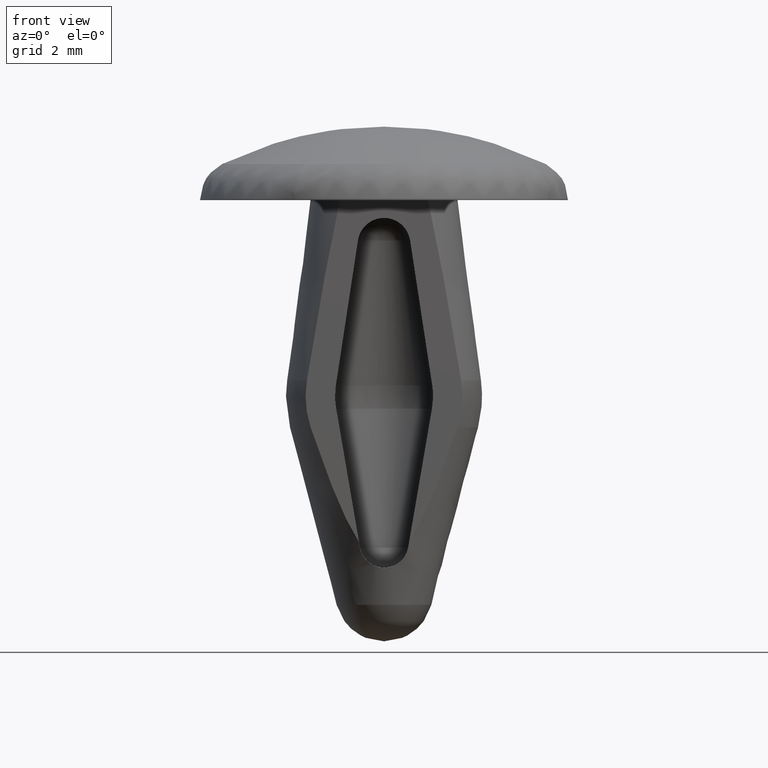
[diagram: clean part render]
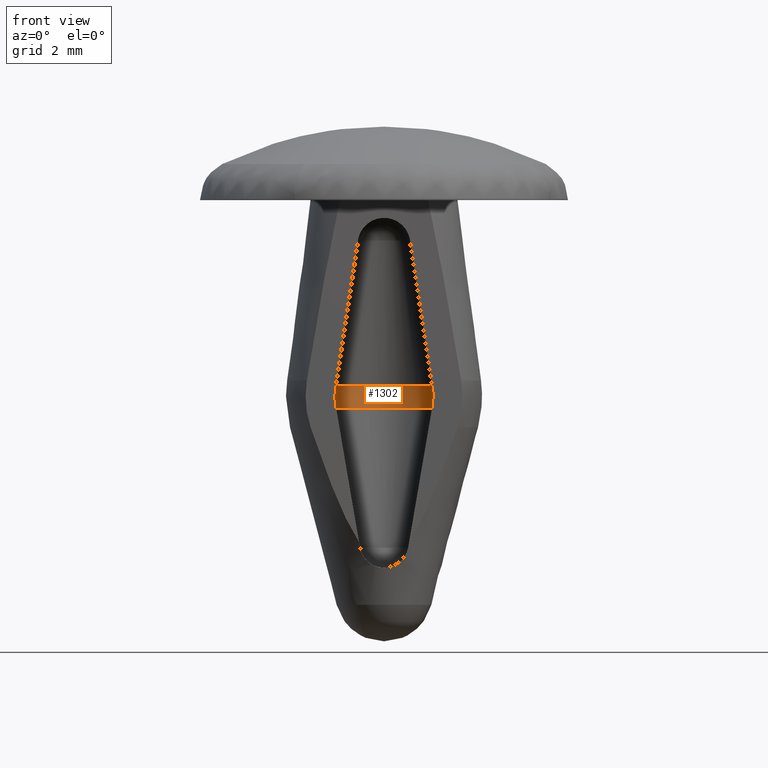
[diagram: same view with one face highlighted and labeled with its STEP entity id]
A machine part, front view. The second image highlights one B-rep face of the part: STEP entity #1302.
In plain terms, the highlighted face is a freeform B-spline surface patch.
Its self-contained STEP definition (entity closure, byte-faithful):
#1179=CARTESIAN_POINT('',(0.978407283496110,-2.168404E-016,-4.253597918180820));
#1180=VERTEX_POINT('',#1179);
#1186=CARTESIAN_POINT('',(-0.978407283496110,-2.168404E-016,-4.253597918180820));
#1187=VERTEX_POINT('',#1186);
#1188=CARTESIAN_POINT('',(-0.978407283496110,0.0,-4.253597918180820));
#1189=CARTESIAN_POINT('',(-0.978407283496110,0.978407283496110,-4.253597918180820));
#1190=CARTESIAN_POINT('',(0.0,0.978407283496110,-4.253597918180820));
#1191=CARTESIAN_POINT('',(0.978407283496110,0.978407283496110,-4.253597918180820));
#1192=CARTESIAN_POINT('',(0.978407283496110,0.0,-4.253597918180820));
#1200=(BOUNDED_CURVE()B_SPLINE_CURVE(2,(#1188,#1189,#1190,#1191,#1192),.UNSPECIFIED.,.F.,.U.)B_SPLINE_CURVE_WITH_KNOTS((3,2,3),(0.0,0.500000000000000,1.0),.UNSPECIFIED.)CURVE()GEOMETRIC_REPRESENTATION_ITEM()RATIONAL_B_SPLINE_CURVE((1.0,0.707106781186547,1.0,0.707106781186547,1.0))REPRESENTATION_ITEM(''));
#1201=EDGE_CURVE('',#1187,#1180,#1200,.T.);
#1211=CARTESIAN_POINT('',(-0.967517366188738,-0.112465859339149,-4.277902019190489));
#1212=CARTESIAN_POINT('',(-0.993311638785082,-0.115464229327074,-4.140164269440069));
#1213=CARTESIAN_POINT('',(-0.993311638785082,-0.115464229327074,-4.0));
#1214=CARTESIAN_POINT('',(-0.993311638785082,-0.115464229327074,-3.873681864521504));
#1215=CARTESIAN_POINT('',(-0.972327716573453,-0.113025022625149,-3.749142727580363));
#1216=CARTESIAN_POINT('',(-0.974032044336163,-0.056421613736072,-4.277902019190488));
#1217=CARTESIAN_POINT('',(-1.0,-0.057925829097877,-4.140164269440068));
#1218=CARTESIAN_POINT('',(-1.0,-0.057925829097877,-4.0));
#1219=CARTESIAN_POINT('',(-1.0,-0.057925829097877,-3.873681864521505));
#1220=CARTESIAN_POINT('',(-0.978874784717820,-0.056702133487786,-3.749142727580362));
#1221=CARTESIAN_POINT('',(-0.974032044336163,0.0,-4.277902019190489));
#1222=CARTESIAN_POINT('',(-1.0,0.0,-4.140164269440068));
#1223=CARTESIAN_POINT('',(-1.0,0.0,-4.0));
#1224=CARTESIAN_POINT('',(-1.0,0.0,-3.873681864521506));
#1225=CARTESIAN_POINT('',(-0.978874784717820,0.0,-3.749142727580364));
#1226=CARTESIAN_POINT('',(-0.974032044336164,0.974032044336164,-4.277902019190488));
#1227=CARTESIAN_POINT('',(-1.0,1.0,-4.140164269440069));
#1228=CARTESIAN_POINT('',(-1.0,1.0,-4.000000000000000));
#1229=CARTESIAN_POINT('',(-1.0,1.0,-3.873681864521506));
#1230=CARTESIAN_POINT('',(-0.978874784717821,0.978874784717821,-3.749142727580362));
#1231=CARTESIAN_POINT('',(0.0,0.974032044336163,-4.277902019190489));
#1232=CARTESIAN_POINT('',(0.0,1.0,-4.140164269440068));
#1233=CARTESIAN_POINT('',(0.0,1.0,-4.0));
#1234=CARTESIAN_POINT('',(0.0,1.0,-3.873681864521506));
#1235=CARTESIAN_POINT('',(0.0,0.978874784717820,-3.749142727580364));
#1236=CARTESIAN_POINT('',(0.974032044336164,0.974032044336164,-4.277902019190488));
#1237=CARTESIAN_POINT('',(1.0,1.0,-4.140164269440069));
#1238=CARTESIAN_POINT('',(1.0,1.0,-4.000000000000000));
#1239=CARTESIAN_POINT('',(1.0,1.0,-3.873681864521506));
#1240=CARTESIAN_POINT('',(0.978874784717821,0.978874784717821,-3.749142727580362));
#1241=CARTESIAN_POINT('',(0.974032044336163,0.0,-4.277902019190489));
#1242=CARTESIAN_POINT('',(1.0,0.0,-4.140164269440068));
#1243=CARTESIAN_POINT('',(1.0,0.0,-4.0));
#1244=CARTESIAN_POINT('',(1.0,0.0,-3.873681864521506));
#1245=CARTESIAN_POINT('',(0.978874784717820,0.0,-3.749142727580364));
#1253=(BOUNDED_SURFACE()B_SPLINE_SURFACE(2,2,((#1211,#1216,#1221,#1226,#1231,#1236,#1241),(#1212,#1217,#1222,#1227,#1232,#1237,#1242),(#1213,#1218,#1223,#1228,#1233,#1238,#1243),(#1214,#1219,#1224,#1229,#1234,#1239,#1244),(#1215,#1220,#1225,#1230,#1235,#1240,#1245)),.UNSPECIFIED.,.F.,.F.,.U.)B_SPLINE_SURFACE_WITH_KNOTS((3,2,3),(3,2,2,3),(0.0,0.286155602682052,0.544780198409713),(0.0,0.132548339959391,1.789402589451770,3.446256838944150),.UNSPECIFIED.)GEOMETRIC_REPRESENTATION_ITEM()RATIONAL_B_SPLINE_SURFACE(((0.910363345250932,0.929088831274450,0.951381076540544,0.672728010714376,0.951381076540544,0.672728010714376,0.951381076540544),(0.929286660432788,0.948401384748693,0.971157008934294,0.686711706614284,0.971157008934294,0.686711706614284,0.971157008934294),(0.956886118190660,0.976568542494924,1.0,0.707106781186548,1.0,0.707106781186548,1.0),(0.931942001989437,0.951111344674442,0.973931990728020,0.688673915058297,0.973931990728020,0.688673915058297,0.973931990728020),(0.914084875836707,0.932886910931905,0.955270286045235,0.675478097128599,0.955270286045235,0.675478097128599,0.955270286045235)))REPRESENTATION_ITEM('')SURFACE());
#1254=CARTESIAN_POINT('',(-0.982788363668221,0.0,-3.773422000000000));
#1255=VERTEX_POINT('',#1254);
#1256=CARTESIAN_POINT('',(0.982788363668221,0.0,-3.773422000000000));
#1257=VERTEX_POINT('',#1256);
#1258=CARTESIAN_POINT('',(-0.982788363668221,0.0,-3.773422000000000));
#1259=CARTESIAN_POINT('',(-0.982788000000000,0.982788000000000,-3.773421999999999));
#1260=CARTESIAN_POINT('',(0.0,0.982788000000000,-3.773422000000000));
#1261=CARTESIAN_POINT('',(0.982788000000000,0.982788000000000,-3.773421999999999));
#1262=CARTESIAN_POINT('',(0.982788363668221,0.0,-3.773422000000000));
#1270=(BOUNDED_CURVE()B_SPLINE_CURVE(2,(#1258,#1259,#1260,#1261,#1262),.UNSPECIFIED.,.F.,.U.)B_SPLINE_CURVE_WITH_KNOTS((3,2,3),(0.0,0.500000000000000,1.0),.UNSPECIFIED.)CURVE()GEOMETRIC_REPRESENTATION_ITEM()RATIONAL_B_SPLINE_CURVE((1.0,0.707106781186548,1.0,0.707106781186548,1.0))REPRESENTATION_ITEM(''));
#1271=EDGE_CURVE('',#1255,#1257,#1270,.T.);
#1272=ORIENTED_EDGE('',*,*,#1271,.F.);
#1273=CARTESIAN_POINT('',(-0.982788363668221,0.0,-3.773422000000000));
#1274=CARTESIAN_POINT('',(-1.019529730938965,0.0,-4.013865170172411));
#1275=CARTESIAN_POINT('',(-0.978407283496112,0.0,-4.253597918180820));
#1283=(BOUNDED_CURVE()B_SPLINE_CURVE(2,(#1273,#1274,#1275),.UNSPECIFIED.,.F.,.U.)CURVE()GEOMETRIC_REPRESENTATION_ITEM()QUASI_UNIFORM_CURVE()RATIONAL_B_SPLINE_CURVE((1.0,0.987106424436386,1.0))REPRESENTATION_ITEM(''));
#1284=EDGE_CURVE('',#1255,#1187,#1283,.T.);
#1285=ORIENTED_EDGE('',*,*,#1284,.T.);
#1286=ORIENTED_EDGE('',*,*,#1201,.T.);
#1287=CARTESIAN_POINT('',(0.978407283496112,0.0,-4.253597918180820));
#1288=CARTESIAN_POINT('',(1.019529730938965,0.0,-4.013865170172412));
#1289=CARTESIAN_POINT('',(0.982788363668221,0.0,-3.773422000000000));
#1297=(BOUNDED_CURVE()B_SPLINE_CURVE(2,(#1287,#1288,#1289),.UNSPECIFIED.,.F.,.U.)CURVE()GEOMETRIC_REPRESENTATION_ITEM()QUASI_UNIFORM_CURVE()RATIONAL_B_SPLINE_CURVE((1.0,0.987106424436386,1.0))REPRESENTATION_ITEM(''));
#1298=EDGE_CURVE('',#1180,#1257,#1297,.T.);
#1299=ORIENTED_EDGE('',*,*,#1298,.T.);
#1300=EDGE_LOOP('',(#1272,#1285,#1286,#1299));
#1301=FACE_OUTER_BOUND('',#1300,.T.);
#1302=ADVANCED_FACE('',(#1301),#1253,.F.);